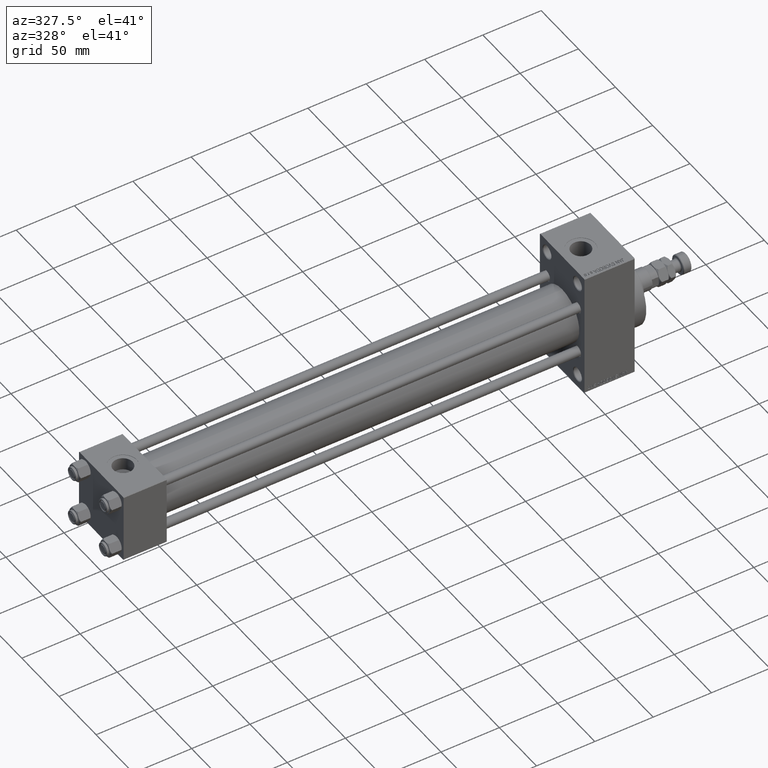
[diagram: clean part render]
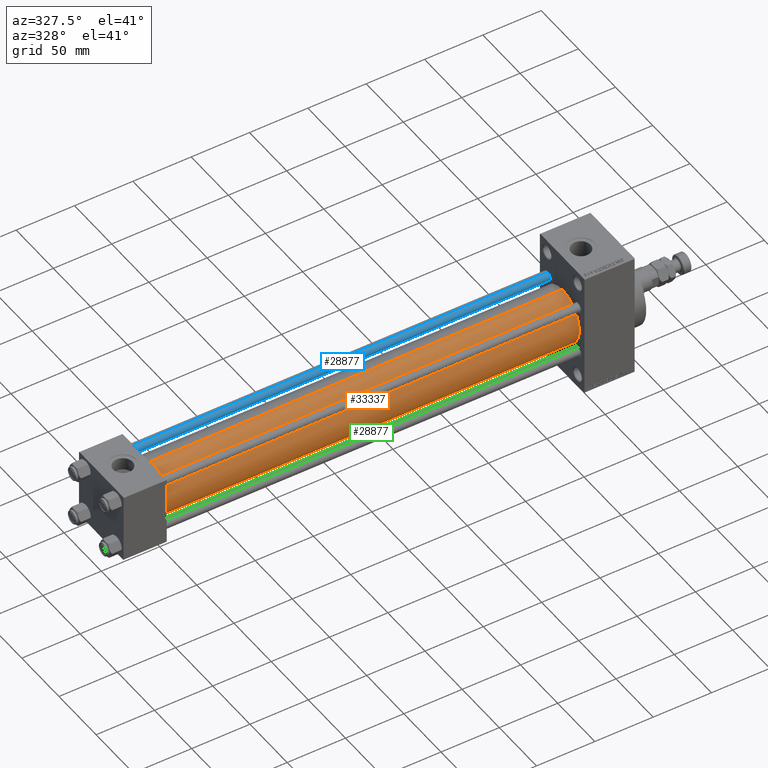
[diagram: same view with three faces highlighted in distinct colors, each labeled with its STEP entity id]
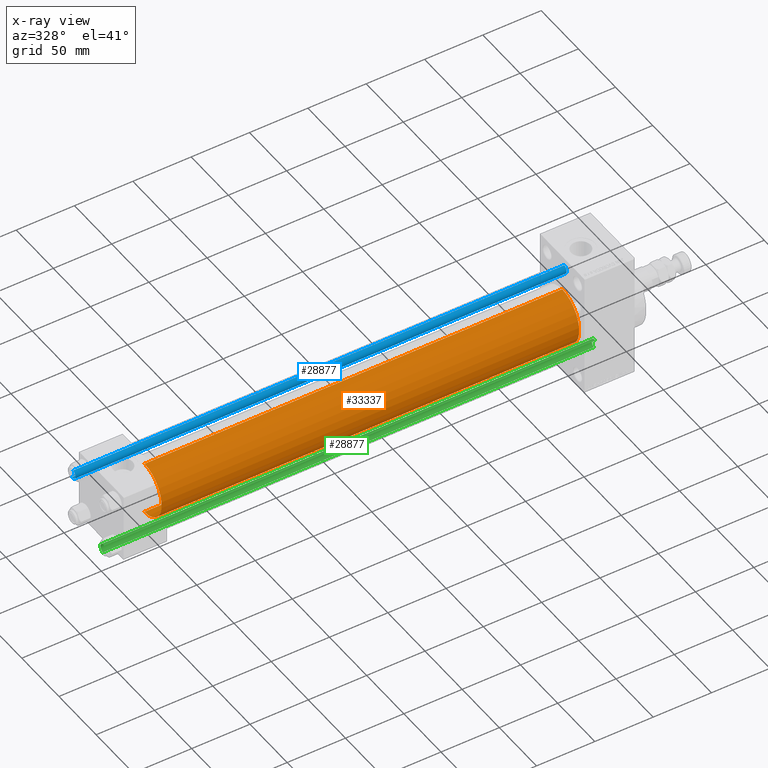
[diagram: x-ray of the same camera — body ghosted, the three highlighted faces saturated]
A machine part, auxiliary view with three faces highlighted in distinct colors.
The next image is the same camera in x-ray (body ghosted, the three faces saturated) — at least one of them is partly hidden behind the body in this view.
Their STEP definitions:

[orange] entity #33337 — the highlighted cylindrical surface (edge-blend (fillet) strip) has radius 23 mm, axis along (-1, -0, -0).
#288 = CARTESIAN_POINT ( 'NONE',  ( 394.9999999999999432, -2.602085213965210642E-15, 0.000000000000000000 ) ) ;
#2222 = ORIENTED_EDGE ( 'NONE', *, *, #3858, .F. ) ;
#2483 = LINE ( 'NONE', #33929, #34709 ) ;
#3858 = EDGE_CURVE ( 'NONE', #8264, #35261, #42164, .T. ) ;
#4323 = EDGE_LOOP ( 'NONE', ( #20900, #2222, #42670, #16006 ) ) ;
#8264 = VERTEX_POINT ( 'NONE', #10797 ) ;
#10797 = CARTESIAN_POINT ( 'NONE',  ( 394.9999999999999432, -2.602085213965210642E-15, 23.00000000000000000 ) ) ;
#13243 = AXIS2_PLACEMENT_3D ( 'NONE', #288, #20129, #27089 ) ;
#13449 = EDGE_CURVE ( 'NONE', #15063, #27562, #21852, .T. ) ;
#13887 = CARTESIAN_POINT ( 'NONE',  ( 394.9999999999999432, 2.146024240737012665E-16, -23.00000000000000000 ) ) ;
#14355 = DIRECTION ( 'NONE',  ( -1.000000000000000000, -0.000000000000000000, -0.000000000000000000 ) ) ;
#15063 = VERTEX_POINT ( 'NONE', #18256 ) ;
#16006 = ORIENTED_EDGE ( 'NONE', *, *, #13449, .T. ) ;
#17106 = FACE_OUTER_BOUND ( 'NONE', #4323, .T. ) ;
#18256 = CARTESIAN_POINT ( 'NONE',  ( 36.99999999999997868, -2.602085213965210642E-15, 23.00000000000000000 ) ) ;
#20129 = DIRECTION ( 'NONE',  ( 1.000000000000000000, 0.000000000000000000, 0.000000000000000000 ) ) ;
#20900 = ORIENTED_EDGE ( 'NONE', *, *, #27734, .F. ) ;
#21852 = CIRCLE ( 'NONE', #39970, 23.00000000000000000 ) ;
#25903 = DIRECTION ( 'NONE',  ( 1.000000000000000000, -0.000000000000000000, 0.000000000000000000 ) ) ;
#26603 = CARTESIAN_POINT ( 'NONE',  ( 36.99999999999997868, 2.146024240737012665E-16, -23.00000000000000000 ) ) ;
#27089 = DIRECTION ( 'NONE',  ( 0.000000000000000000, 0.000000000000000000, -1.000000000000000000 ) ) ;
#27562 = VERTEX_POINT ( 'NONE', #26603 ) ;
#27734 = EDGE_CURVE ( 'NONE', #35261, #27562, #49172, .T. ) ;
#30218 = EDGE_CURVE ( 'NONE', #8264, #15063, #2483, .T. ) ;
#30675 = DIRECTION ( 'NONE',  ( -1.000000000000000000, -0.000000000000000000, -0.000000000000000000 ) ) ;
#33073 = AXIS2_PLACEMENT_3D ( 'NONE', #48999, #44895, #37176 ) ;
#33337 = ADVANCED_FACE ( 'NONE', ( #17106 ), #37432, .T. ) ;
#33929 = CARTESIAN_POINT ( 'NONE',  ( 394.9999999999999432, -2.602085213965210642E-15, 23.00000000000000000 ) ) ;
#34709 = VECTOR ( 'NONE', #14355, 1000.000000000000000 ) ;
#35261 = VERTEX_POINT ( 'NONE', #35829 ) ;
#35829 = CARTESIAN_POINT ( 'NONE',  ( 394.9999999999999432, 2.146024240737012665E-16, -23.00000000000000000 ) ) ;
#37176 = DIRECTION ( 'NONE',  ( 0.000000000000000000, 0.000000000000000000, 1.000000000000000000 ) ) ;
#37432 = CYLINDRICAL_SURFACE ( 'NONE', #33073, 23.00000000000000000 ) ;
#37761 = CARTESIAN_POINT ( 'NONE',  ( 36.99999999999997868, -2.602085213965210642E-15, 0.000000000000000000 ) ) ;
#39970 = AXIS2_PLACEMENT_3D ( 'NONE', #37761, #25903, #41625 ) ;
#41625 = DIRECTION ( 'NONE',  ( 0.000000000000000000, 0.000000000000000000, 1.000000000000000000 ) ) ;
#42164 = CIRCLE ( 'NONE', #13243, 23.00000000000000000 ) ;
#42670 = ORIENTED_EDGE ( 'NONE', *, *, #30218, .T. ) ;
#44895 = DIRECTION ( 'NONE',  ( -1.000000000000000000, -0.000000000000000000, -0.000000000000000000 ) ) ;
#48597 = VECTOR ( 'NONE', #30675, 1000.000000000000000 ) ;
#48999 = CARTESIAN_POINT ( 'NONE',  ( 394.9999999999999432, -2.602085213965210642E-15, 0.000000000000000000 ) ) ;
#49172 = LINE ( 'NONE', #13887, #48597 ) ;

[blue] entity #28877 — the highlighted cylindrical surface (edge-blend (fillet) strip) has radius 4 mm, axis along (-1, -0, 0).
#2442 = AXIS2_PLACEMENT_3D ( 'NONE', #12201, #19940, #24566 ) ;
#4034 = CIRCLE ( 'NONE', #32829, 4.000000000000000000 ) ;
#5277 = DIRECTION ( 'NONE',  ( -0.000000000000000000, -0.000000000000000000, -1.000000000000000000 ) ) ;
#5956 = CARTESIAN_POINT ( 'NONE',  ( 4.000000000000000000, 4.898587196589412829E-16, 422.0000000000000000 ) ) ;
#6670 = VECTOR ( 'NONE', #21679, 1000.000000000000000 ) ;
#11116 = ORIENTED_EDGE ( 'NONE', *, *, #49160, .T. ) ;
#11644 = DIRECTION ( 'NONE',  ( -0.000000000000000000, -0.000000000000000000, 1.000000000000000000 ) ) ;
#12201 = CARTESIAN_POINT ( 'NONE',  ( 0.000000000000000000, 0.000000000000000000, 421.4999999999999432 ) ) ;
#19496 = VERTEX_POINT ( 'NONE', #22893 ) ;
#19940 = DIRECTION ( 'NONE',  ( 0.000000000000000000, 0.000000000000000000, -1.000000000000000000 ) ) ;
#21679 = DIRECTION ( 'NONE',  ( -0.000000000000000000, -0.000000000000000000, -1.000000000000000000 ) ) ;
#21974 = CARTESIAN_POINT ( 'NONE',  ( 4.000000000000000000, 4.898587196589412829E-16, 421.4999999999999432 ) ) ;
#22444 = CYLINDRICAL_SURFACE ( 'NONE', #33005, 4.000000000000000000 ) ;
#22893 = CARTESIAN_POINT ( 'NONE',  ( -4.000000000000000000, 0.000000000000000000, 0.5000000000001114664 ) ) ;
#23777 = EDGE_CURVE ( 'NONE', #45428, #19496, #24874, .T. ) ;
#23839 = CIRCLE ( 'NONE', #2442, 4.000000000000000000 ) ;
#24566 = DIRECTION ( 'NONE',  ( 1.000000000000000000, 0.000000000000000000, 0.000000000000000000 ) ) ;
#24874 = LINE ( 'NONE', #28733, #27890 ) ;
#25545 = EDGE_CURVE ( 'NONE', #41710, #45428, #23839, .T. ) ;
#26571 = DIRECTION ( 'NONE',  ( -1.000000000000000000, 0.000000000000000000, 0.000000000000000000 ) ) ;
#27175 = ORIENTED_EDGE ( 'NONE', *, *, #23777, .T. ) ;
#27890 = VECTOR ( 'NONE', #5277, 1000.000000000000000 ) ;
#28733 = CARTESIAN_POINT ( 'NONE',  ( -4.000000000000000000, 0.000000000000000000, 422.0000000000000000 ) ) ;
#28877 = ADVANCED_FACE ( 'NONE', ( #45379 ), #22444, .T. ) ;
#28893 = EDGE_CURVE ( 'NONE', #41710, #33778, #41267, .T. ) ;
#28944 = CARTESIAN_POINT ( 'NONE',  ( -4.000000000000000000, 0.000000000000000000, 421.4999999999999432 ) ) ;
#32829 = AXIS2_PLACEMENT_3D ( 'NONE', #42823, #11644, #38218 ) ;
#33005 = AXIS2_PLACEMENT_3D ( 'NONE', #37156, #38181, #26571 ) ;
#33778 = VERTEX_POINT ( 'NONE', #38985 ) ;
#37156 = CARTESIAN_POINT ( 'NONE',  ( 0.000000000000000000, 0.000000000000000000, 422.0000000000000000 ) ) ;
#38181 = DIRECTION ( 'NONE',  ( -0.000000000000000000, -0.000000000000000000, -1.000000000000000000 ) ) ;
#38218 = DIRECTION ( 'NONE',  ( 1.000000000000000000, 0.000000000000000000, 0.000000000000000000 ) ) ;
#38985 = CARTESIAN_POINT ( 'NONE',  ( 4.000000000000000000, 4.898587196589412829E-16, 0.5000000000001114664 ) ) ;
#41267 = LINE ( 'NONE', #5956, #6670 ) ;
#41710 = VERTEX_POINT ( 'NONE', #21974 ) ;
#42823 = CARTESIAN_POINT ( 'NONE',  ( 0.000000000000000000, 0.000000000000000000, 0.5000000000001114664 ) ) ;
#43179 = ORIENTED_EDGE ( 'NONE', *, *, #25545, .T. ) ;
#43713 = ORIENTED_EDGE ( 'NONE', *, *, #28893, .F. ) ;
#43973 = EDGE_LOOP ( 'NONE', ( #43713, #43179, #27175, #11116 ) ) ;
#45379 = FACE_OUTER_BOUND ( 'NONE', #43973, .T. ) ;
#45428 = VERTEX_POINT ( 'NONE', #28944 ) ;
#49160 = EDGE_CURVE ( 'NONE', #19496, #33778, #4034, .T. ) ;

[green] entity #28877 — the highlighted cylindrical surface (edge-blend (fillet) strip) has radius 4 mm, axis along (-1, 0, 0).
#2442 = AXIS2_PLACEMENT_3D ( 'NONE', #12201, #19940, #24566 ) ;
#4034 = CIRCLE ( 'NONE', #32829, 4.000000000000000000 ) ;
#5277 = DIRECTION ( 'NONE',  ( -0.000000000000000000, -0.000000000000000000, -1.000000000000000000 ) ) ;
#5956 = CARTESIAN_POINT ( 'NONE',  ( 4.000000000000000000, 4.898587196589412829E-16, 422.0000000000000000 ) ) ;
#6670 = VECTOR ( 'NONE', #21679, 1000.000000000000000 ) ;
#11116 = ORIENTED_EDGE ( 'NONE', *, *, #49160, .T. ) ;
#11644 = DIRECTION ( 'NONE',  ( -0.000000000000000000, -0.000000000000000000, 1.000000000000000000 ) ) ;
#12201 = CARTESIAN_POINT ( 'NONE',  ( 0.000000000000000000, 0.000000000000000000, 421.4999999999999432 ) ) ;
#19496 = VERTEX_POINT ( 'NONE', #22893 ) ;
#19940 = DIRECTION ( 'NONE',  ( 0.000000000000000000, 0.000000000000000000, -1.000000000000000000 ) ) ;
#21679 = DIRECTION ( 'NONE',  ( -0.000000000000000000, -0.000000000000000000, -1.000000000000000000 ) ) ;
#21974 = CARTESIAN_POINT ( 'NONE',  ( 4.000000000000000000, 4.898587196589412829E-16, 421.4999999999999432 ) ) ;
#22444 = CYLINDRICAL_SURFACE ( 'NONE', #33005, 4.000000000000000000 ) ;
#22893 = CARTESIAN_POINT ( 'NONE',  ( -4.000000000000000000, 0.000000000000000000, 0.5000000000001114664 ) ) ;
#23777 = EDGE_CURVE ( 'NONE', #45428, #19496, #24874, .T. ) ;
#23839 = CIRCLE ( 'NONE', #2442, 4.000000000000000000 ) ;
#24566 = DIRECTION ( 'NONE',  ( 1.000000000000000000, 0.000000000000000000, 0.000000000000000000 ) ) ;
#24874 = LINE ( 'NONE', #28733, #27890 ) ;
#25545 = EDGE_CURVE ( 'NONE', #41710, #45428, #23839, .T. ) ;
#26571 = DIRECTION ( 'NONE',  ( -1.000000000000000000, 0.000000000000000000, 0.000000000000000000 ) ) ;
#27175 = ORIENTED_EDGE ( 'NONE', *, *, #23777, .T. ) ;
#27890 = VECTOR ( 'NONE', #5277, 1000.000000000000000 ) ;
#28733 = CARTESIAN_POINT ( 'NONE',  ( -4.000000000000000000, 0.000000000000000000, 422.0000000000000000 ) ) ;
#28877 = ADVANCED_FACE ( 'NONE', ( #45379 ), #22444, .T. ) ;
#28893 = EDGE_CURVE ( 'NONE', #41710, #33778, #41267, .T. ) ;
#28944 = CARTESIAN_POINT ( 'NONE',  ( -4.000000000000000000, 0.000000000000000000, 421.4999999999999432 ) ) ;
#32829 = AXIS2_PLACEMENT_3D ( 'NONE', #42823, #11644, #38218 ) ;
#33005 = AXIS2_PLACEMENT_3D ( 'NONE', #37156, #38181, #26571 ) ;
#33778 = VERTEX_POINT ( 'NONE', #38985 ) ;
#37156 = CARTESIAN_POINT ( 'NONE',  ( 0.000000000000000000, 0.000000000000000000, 422.0000000000000000 ) ) ;
#38181 = DIRECTION ( 'NONE',  ( -0.000000000000000000, -0.000000000000000000, -1.000000000000000000 ) ) ;
#38218 = DIRECTION ( 'NONE',  ( 1.000000000000000000, 0.000000000000000000, 0.000000000000000000 ) ) ;
#38985 = CARTESIAN_POINT ( 'NONE',  ( 4.000000000000000000, 4.898587196589412829E-16, 0.5000000000001114664 ) ) ;
#41267 = LINE ( 'NONE', #5956, #6670 ) ;
#41710 = VERTEX_POINT ( 'NONE', #21974 ) ;
#42823 = CARTESIAN_POINT ( 'NONE',  ( 0.000000000000000000, 0.000000000000000000, 0.5000000000001114664 ) ) ;
#43179 = ORIENTED_EDGE ( 'NONE', *, *, #25545, .T. ) ;
#43713 = ORIENTED_EDGE ( 'NONE', *, *, #28893, .F. ) ;
#43973 = EDGE_LOOP ( 'NONE', ( #43713, #43179, #27175, #11116 ) ) ;
#45379 = FACE_OUTER_BOUND ( 'NONE', #43973, .T. ) ;
#45428 = VERTEX_POINT ( 'NONE', #28944 ) ;
#49160 = EDGE_CURVE ( 'NONE', #19496, #33778, #4034, .T. ) ;